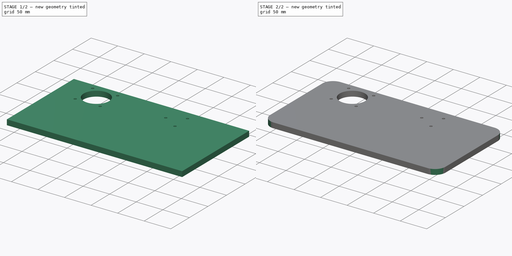
[diagram: build sequence overview — one tinted view per stage of 2, left to right]
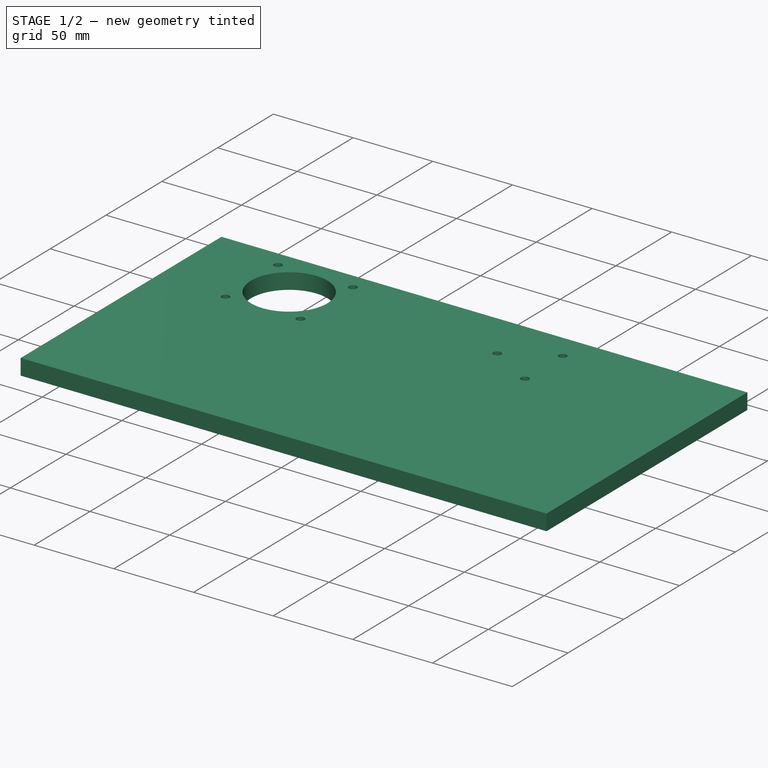
[diagram: stage 1 of 2 — iso view after this stage's code; geometry added in this stage tinted green]
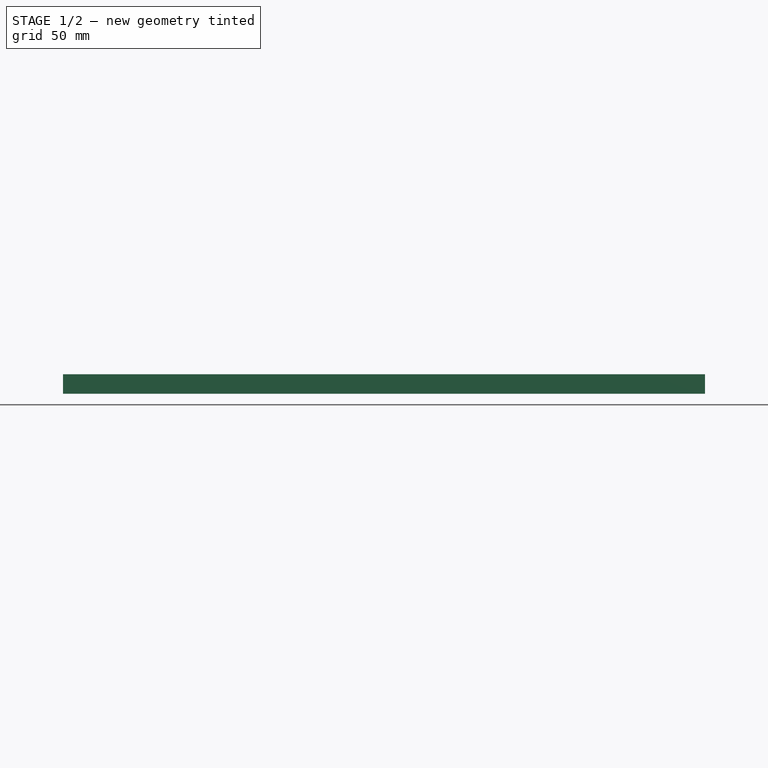
[diagram: stage 1 of 2 — front view after this stage's code; geometry added in this stage tinted green]
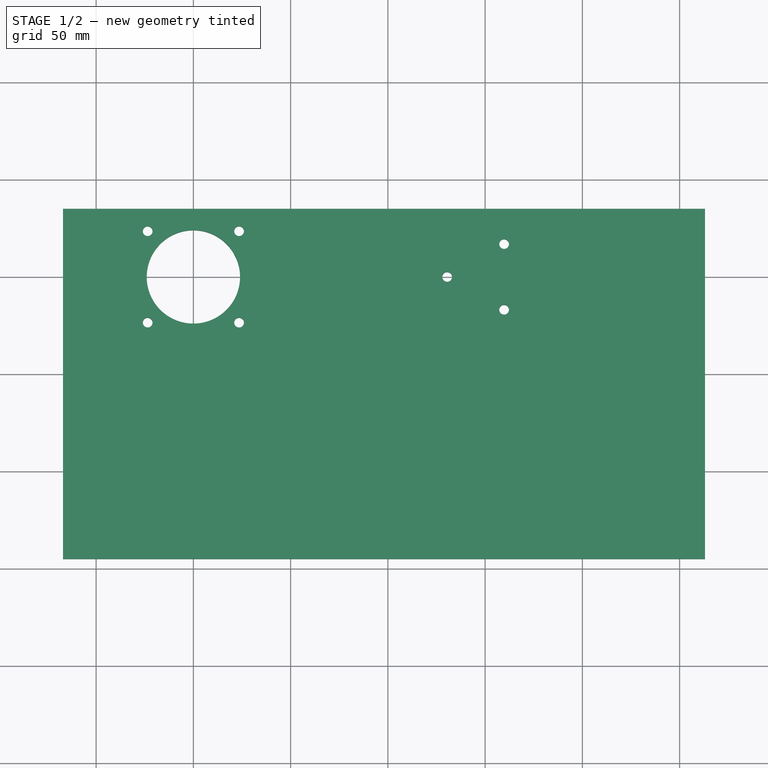
[diagram: stage 1 of 2 — top view after this stage's code; geometry added in this stage tinted green]
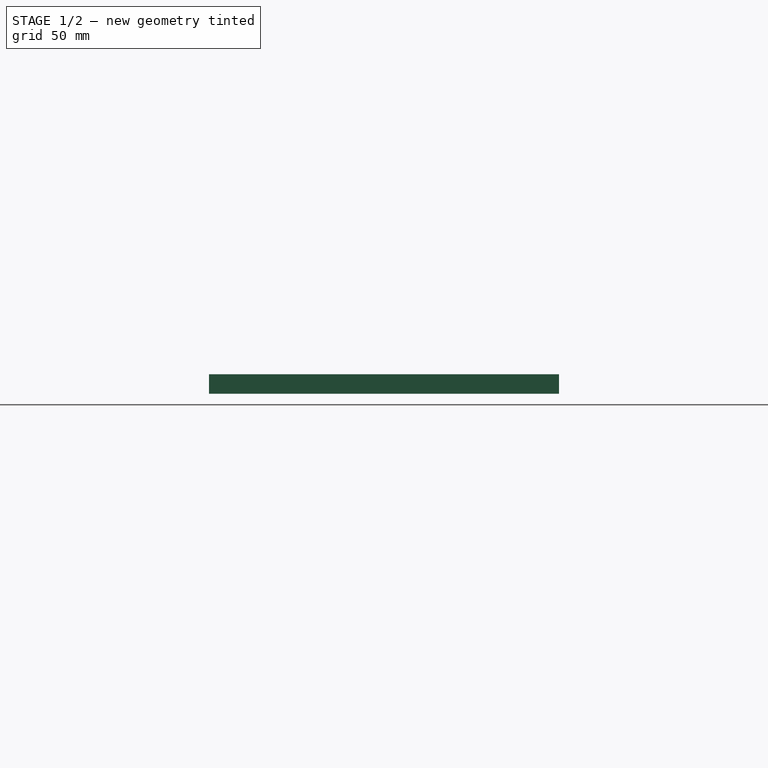
[diagram: stage 1 of 2 — right view after this stage's code; geometry added in this stage tinted green]
FCSTD DOCUMENT  (FreeCAD 0.19R24276 (Git))
Label: Opora_Nema23
License: All rights reserved
LicenseURL: http://en.wikipedia.org/wiki/All_rights_reserved
objects: Sketcher::SketchObject×1, PartDesign::Pad×1, PartDesign::Fillet×1, PartDesign::Body×1
note: 6 computed .brp shape members not serialized (recipe doc carries the construction recipe); baked Part::Feature solids carry a one-line shape summary decoded from their .brp

FEATURE [Sketcher::SketchObject] Sketch
  FullyConstrained = false
  MapMode = 5
  Support = -> [XY_Plane]
  sketch-geometry (42):
    g0: Circle CenterX=0 CenterY=0 CenterZ=0 NormalX=0 NormalY=0 NormalZ=1 AngleXU=0 Radius=19.5
    g1: LineSegment StartX=23.5 StartY=23.5 StartZ=0 EndX=-23.5 EndY=23.5 EndZ=0
    g2: LineSegment StartX=-23.5 StartY=23.5 StartZ=0 EndX=-23.5 EndY=-23.5 EndZ=0
    g3: LineSegment StartX=-23.5 StartY=-23.5 StartZ=0 EndX=23.5 EndY=-23.5 EndZ=0
    g4: LineSegment StartX=23.5 StartY=-23.5 StartZ=0 EndX=23.5 EndY=23.5 EndZ=0
    g5: Circle CenterX=0 CenterY=0 CenterZ=0 NormalX=0 NormalY=0 NormalZ=1 AngleXU=0 Radius=33.234
    g6: Circle CenterX=23.5 CenterY=23.5 CenterZ=0 NormalX=0 NormalY=0 NormalZ=1 AngleXU=0 Radius=2.5
    g7: Circle CenterX=-23.5 CenterY=23.5 CenterZ=0 NormalX=0 NormalY=0 NormalZ=1 AngleXU=0 Radius=2.5
    g8: Circle CenterX=-23.5 CenterY=-23.5 CenterZ=0 NormalX=0 NormalY=0 NormalZ=1 AngleXU=0 Radius=2.5
    g9: Circle CenterX=23.5 CenterY=-23.5 CenterZ=0 NormalX=0 NormalY=0 NormalZ=1 AngleXU=0 Radius=2.5
    g10: Circle CenterX=150 CenterY=0 CenterZ=0 NormalX=0 NormalY=0 NormalZ=1 AngleXU=0 Radius=37.5
    g11: LineSegment StartX=-63 StartY=37.6189 StartZ=0 EndX=-33 EndY=37.6189 EndZ=0
    g12: LineSegment StartX=-33 StartY=37.6189 StartZ=0 EndX=-33 EndY=-138.588 EndZ=0
    g13: LineSegment StartX=-33 StartY=-138.588 StartZ=0 EndX=-63 EndY=-138.588 EndZ=0
    g14: LineSegment StartX=-63 StartY=-138.588 StartZ=0 EndX=-63 EndY=37.6189 EndZ=0
    g15: LineSegment StartX=29 StartY=29 StartZ=0 EndX=-29 EndY=29 EndZ=0
    g16: LineSegment StartX=-29 StartY=29 StartZ=0 EndX=-29 EndY=-29 EndZ=0
    g17: LineSegment StartX=-29 StartY=-29 StartZ=0 EndX=29 EndY=-29 EndZ=0
    g18: LineSegment StartX=29 StartY=-29 StartZ=0 EndX=29 EndY=29 EndZ=0
    g19: Circle CenterX=0 CenterY=0 CenterZ=0 NormalX=0 NormalY=0 NormalZ=1 AngleXU=0 Radius=41.0122
    g20: LineSegment StartX=150 StartY=0 StartZ=0 EndX=62.6466 EndY=20.1621 EndZ=0
    g21: LineSegment StartX=-67 StartY=35 StartZ=0 EndX=263 EndY=35 EndZ=0
    g22: LineSegment StartX=263 StartY=35 StartZ=0 EndX=263 EndY=-145 EndZ=0
    g23: LineSegment StartX=263 StartY=-145 StartZ=0 EndX=-67 EndY=-145 EndZ=0
    g24: LineSegment StartX=-67 StartY=-145 StartZ=0 EndX=-67 EndY=35 EndZ=0
    g25: LineSegment StartX=250.403 StartY=54.4876 StartZ=0 EndX=220.403 EndY=54.4876 EndZ=0
    g26: LineSegment StartX=220.403 StartY=54.4876 StartZ=0 EndX=220.403 EndY=-180.113 EndZ=0
    g27: LineSegment StartX=220.403 StartY=-180.113 StartZ=0 EndX=250.403 EndY=-180.113 EndZ=0
    g28: LineSegment StartX=250.403 StartY=-180.113 StartZ=0 EndX=250.403 EndY=54.4876 EndZ=0
    g29: Circle CenterX=150 CenterY=0 CenterZ=0 NormalX=0 NormalY=0 NormalZ=1 AngleXU=0 Radius=43.5
    g30: Circle CenterX=0 CenterY=0 CenterZ=0 NormalX=0 NormalY=0 NormalZ=1 AngleXU=0 Radius=24
    g31: LineSegment StartX=0 StartY=57.7393 StartZ=0 EndX=150 EndY=57.7393 EndZ=0
    g32: LineSegment StartX=150 StartY=57.7393 StartZ=0 EndX=150 EndY=-259.427 EndZ=0
    g33: LineSegment StartX=150 StartY=-259.427 StartZ=0 EndX=0 EndY=-259.427 EndZ=0
    g34: LineSegment StartX=0 StartY=-259.427 StartZ=0 EndX=0 EndY=57.7393 EndZ=0
    g35: LineSegment StartX=159.75 StartY=16.8875 StartZ=0 EndX=130.5 EndY=3.6e-15 EndZ=0
    g36: LineSegment StartX=130.5 StartY=3.6e-15 StartZ=0 EndX=159.75 EndY=-16.8875 EndZ=0
    g37: LineSegment StartX=159.75 StartY=-16.8875 StartZ=0 EndX=159.75 EndY=16.8875 EndZ=0
    g38: Circle CenterX=150 CenterY=0 CenterZ=0 NormalX=0 NormalY=0 NormalZ=1 AngleXU=0 Radius=19.5
    g39: Circle CenterX=159.75 CenterY=16.8875 CenterZ=0 NormalX=0 NormalY=0 NormalZ=1 AngleXU=0 Radius=2.5
    g40: Circle CenterX=130.5 CenterY=3.6e-15 CenterZ=0 NormalX=0 NormalY=0 NormalZ=1 AngleXU=0 Radius=2.5
    g41: Circle CenterX=159.75 CenterY=-16.8875 CenterZ=0 NormalX=0 NormalY=0 NormalZ=1 AngleXU=0 Radius=2.5
  constraints (105):
    c: Coincident(g0,g-1)
    c: Diameter(g0) = 39
    c: Coincident(g1,g2)
    c: Coincident(g2,g3)
    c: Coincident(g3,g4)
    c: Coincident(g4,g1)
    c: Equal(g1,g2)
    c: Equal(g1,g3)
    c: Equal(g1,g4)
    c: PointOnObject(g1,g5)
    c: PointOnObject(g2,g5)
    c: PointOnObject(g3,g5)
    c: PointOnObject(g4,g5)
    c: Coincident(g5,g-1)
    c: Horizontal(g1)
    c: DistanceX(g3,g3) = 47
    c: Coincident(g6,g1)
    c: Coincident(g7,g1)
    c: Coincident(g8,g2)
    c: Coincident(g9,g3)
    c: Equal(g9,g8)
    c: Equal(g8,g7)
    c: Equal(g7,g6)
    c: Diameter(g9) = 5
    c: PointOnObject(g10,g-1)
    c: DistanceX(g-1,g10) = 150
    c: Diameter(g10) = 75
    c: Coincident(g11,g12)
    c: Coincident(g12,g13)
    c: Coincident(g13,g14)
    c: Coincident(g14,g11)
    c: Horizontal(g11)
    c: Horizontal(g13)
    c: Vertical(g12)
    c: Vertical(g14)
    c: Coincident(g15,g16)
    c: Coincident(g16,g17)
    c: Coincident(g17,g18)
    c: Coincident(g18,g15)
    c: Equal(g15,g16)
    c: Equal(g15,g17)
    c: Equal(g15,g18)
    c: PointOnObject(g15,g19)
    c: PointOnObject(g16,g19)
    c: PointOnObject(g17,g19)
    c: PointOnObject(g18,g19)
    c: Coincident(g19,g-1)
    c: Horizontal(g15)
    c: DistanceX(g17,g17) = 58
    c: DistanceX(g11,g11) = 30
    c: Coincident(g20,g10)
    c: Distance(g20) = 89.65
    c: Coincident(g21,g22)
    c: Coincident(g22,g23)
    c: Coincident(g23,g24)
    c: Coincident(g24,g21)
    c: Horizontal(g21)
    c: Horizontal(g23)
    c: Vertical(g22)
    c: Vertical(g24)
    c: DistanceY(g22,g22) = 180
    c: Coincident(g25,g26)
    c: Coincident(g26,g27)
    c: Coincident(g27,g28)
    c: Coincident(g28,g25)
    c: Horizontal(g25)
    c: Horizontal(g27)
    c: Vertical(g26)
    c: Vertical(g28)
    c: DistanceX(g27,g27) = 30
    c: Coincident(g29,g10)
    c: Diameter(g29) = 87
    c: Coincident(g30,g-1)
    c: Diameter(g30) = 48
    c: DistanceY(g30,g21) = 35
    c: Coincident(g31,g32)
    c: Coincident(g32,g33)
    c: Coincident(g33,g34)
    c: Coincident(g34,g31)
    c: Horizontal(g31)
    c: Horizontal(g33)
    c: Vertical(g32)
    c: Vertical(g34)
    c: DistanceX(g33,g33) = 150
    c: Vertical(g10,g31)
    c: Coincident(g35,g36)
    c: Coincident(g36,g37)
    c: Coincident(g37,g35)
    c: Equal(g35,g36)
    c: Equal(g35,g37)
    c: PointOnObject(g35,g38)
    c: PointOnObject(g36,g38)
    c: PointOnObject(g37,g38)
    c: Coincident(g38,g10)
    c: Diameter(g38) = 39
    c: Vertical(g37)
    c: Coincident(g39,g35)
    c: Coincident(g40,g35)
    c: Coincident(g41,g36)
    c: Equal(g41,g40)
    c: Equal(g40,g39)
    c: Diameter(g41) = 5
    c: DistanceX(g11,g15) = 4
    c: DistanceX(g23,g23) = 330
    c: DistanceX(g21,g11) = 4
FEATURE [PartDesign::Pad] Pad
  Direction = (1,1,1)
  Length = 10
  Length2 = 100
  Profile = -> Sketch
  Type = 0
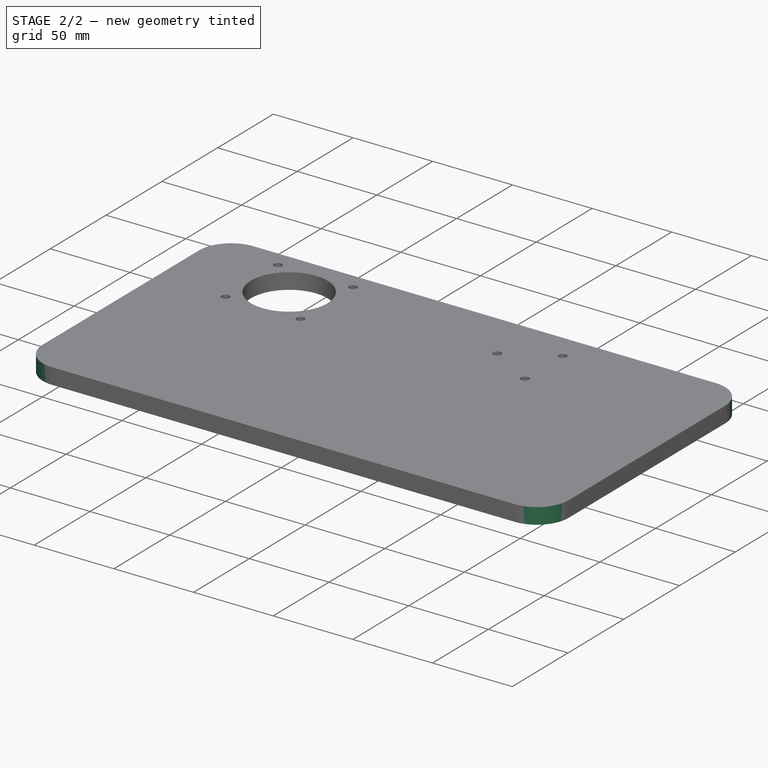
[diagram: stage 2 of 2 — iso view after this stage's code; geometry added in this stage tinted green]
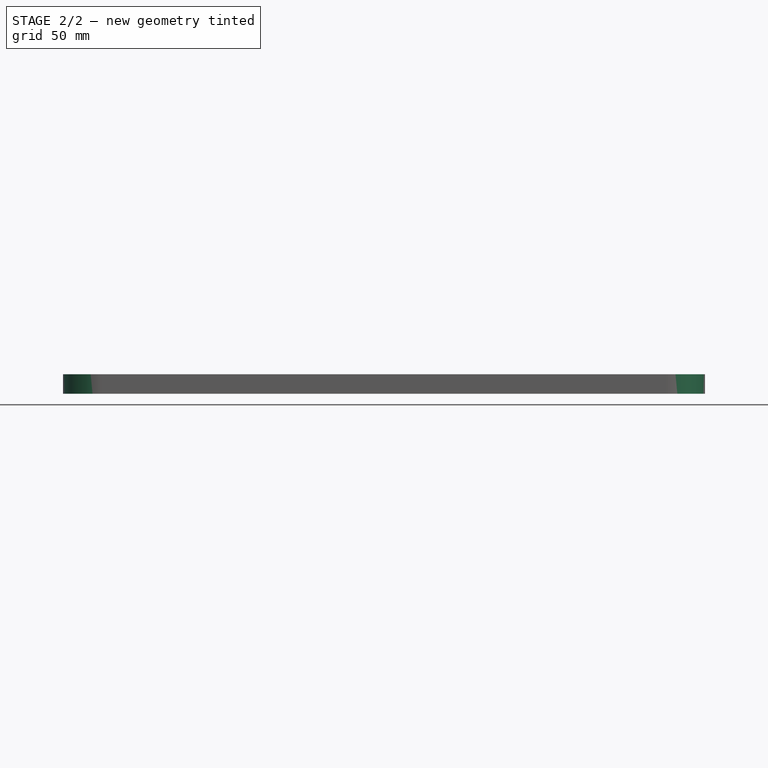
[diagram: stage 2 of 2 — front view after this stage's code; geometry added in this stage tinted green]
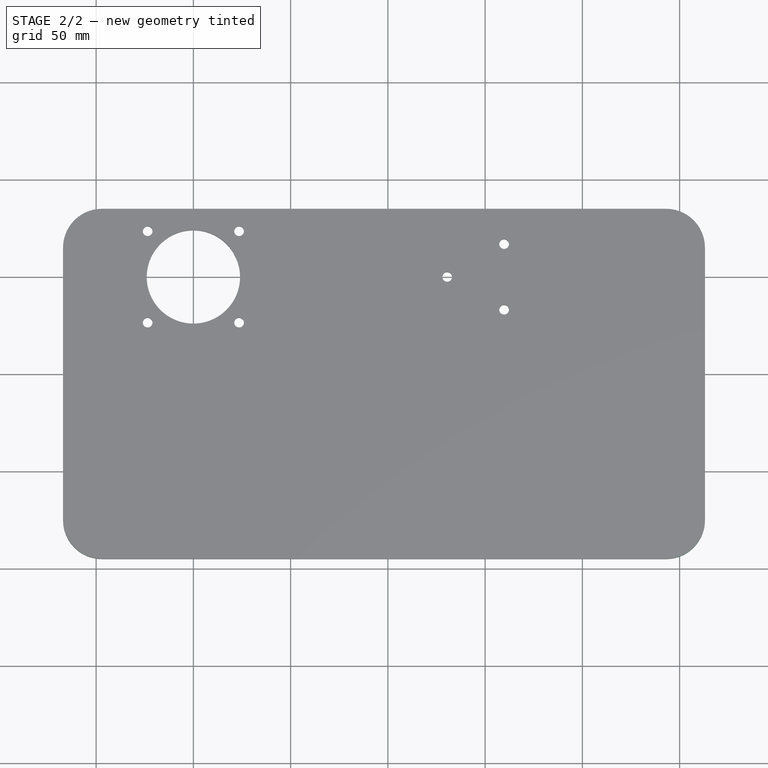
[diagram: stage 2 of 2 — top view after this stage's code; geometry added in this stage tinted green]
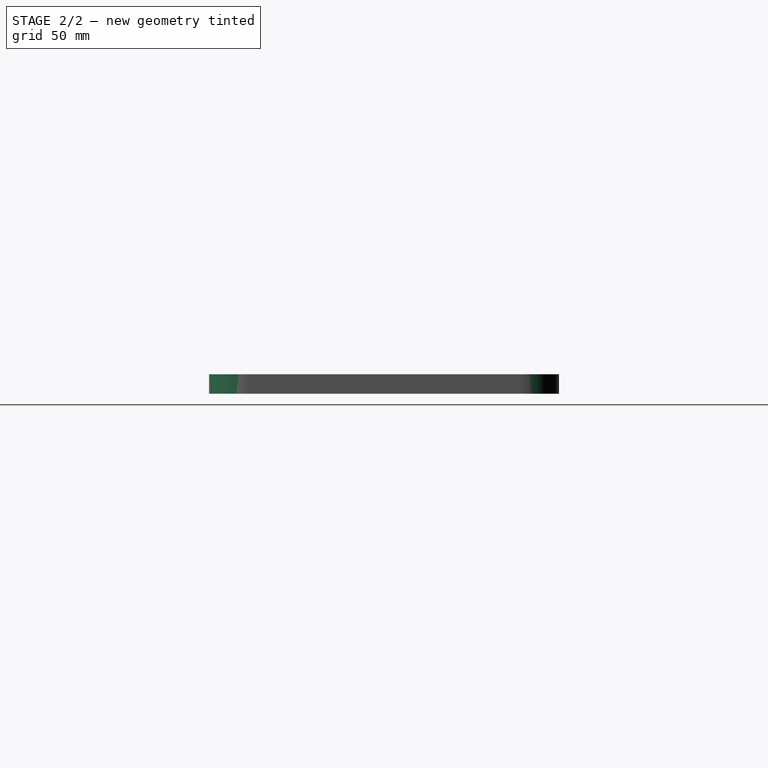
[diagram: stage 2 of 2 — right view after this stage's code; geometry added in this stage tinted green]
FEATURE [PartDesign::Fillet] Fillet
  Base = -> Pad [Edge8,Edge5,Edge2,Edge1]
  BaseFeature = -> Pad
  Radius = 20
  SupportTransform = false
FEATURE [PartDesign::Body] Body
  Group = -> [Sketch,Pad,Fillet]
  Origin = -> Origin
  Tip = -> Fillet
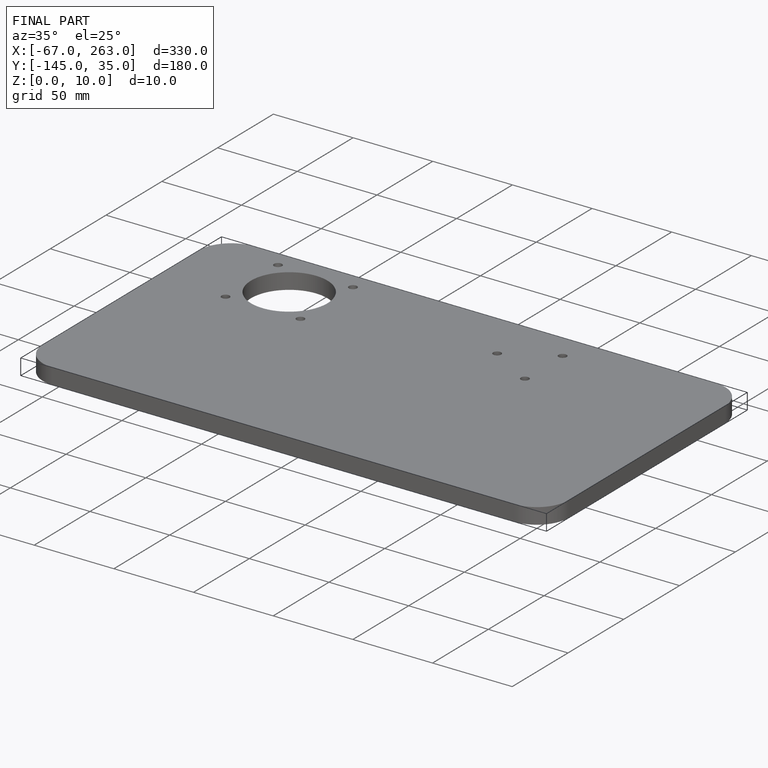
[diagram: finished part — iso view with bounding-box wireframe]
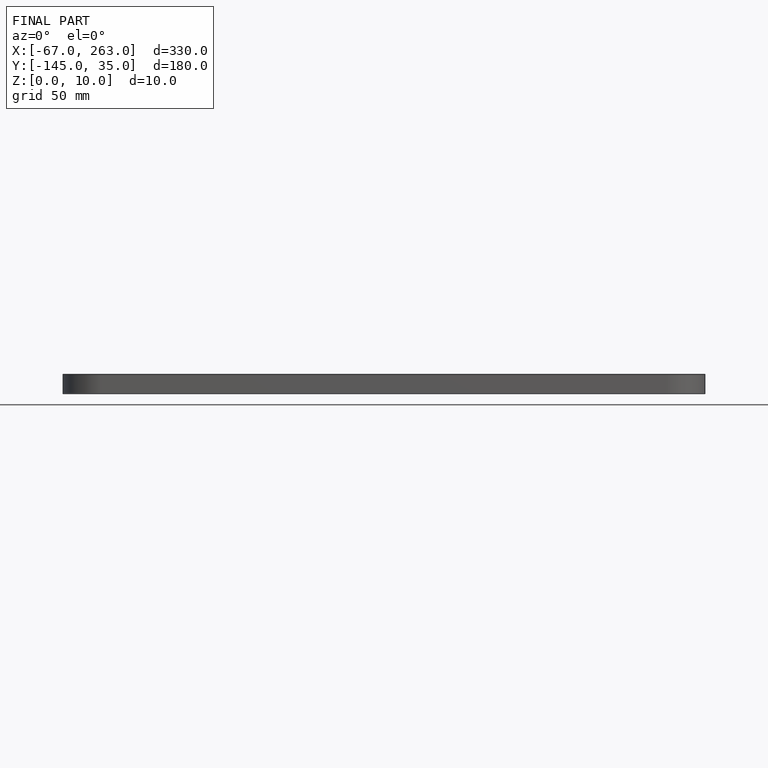
[diagram: finished part — front view with bounding-box wireframe]
